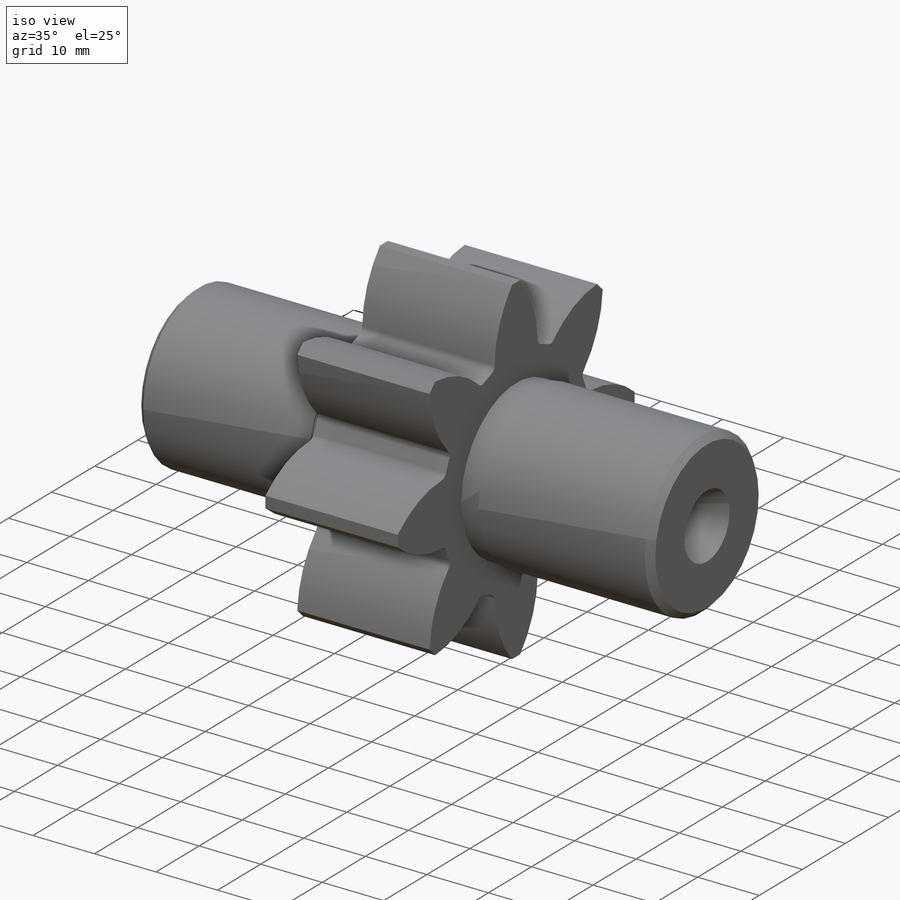
[diagram: iso view]
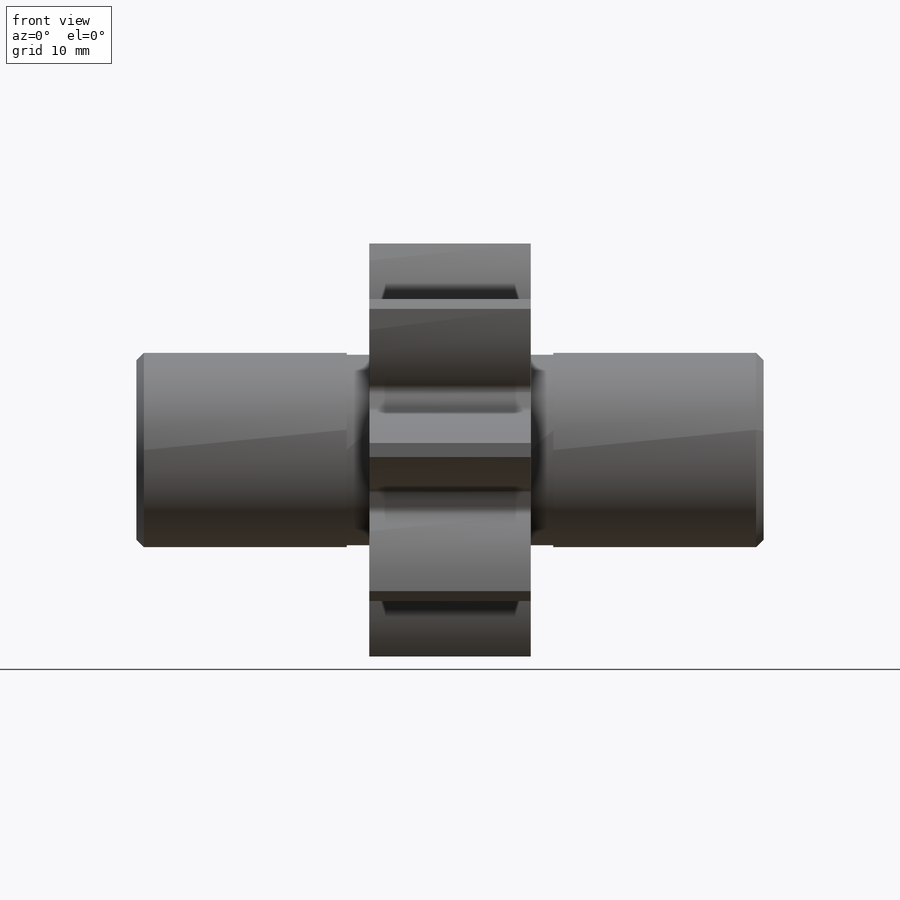
[diagram: front view]
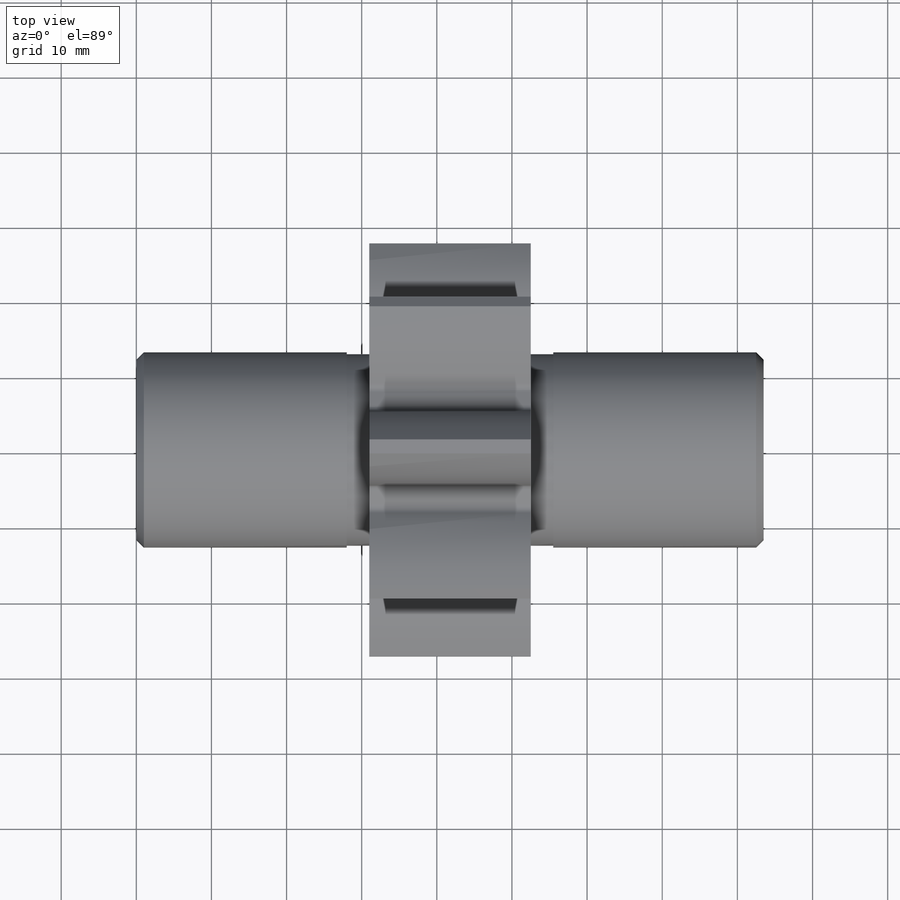
[diagram: top view]
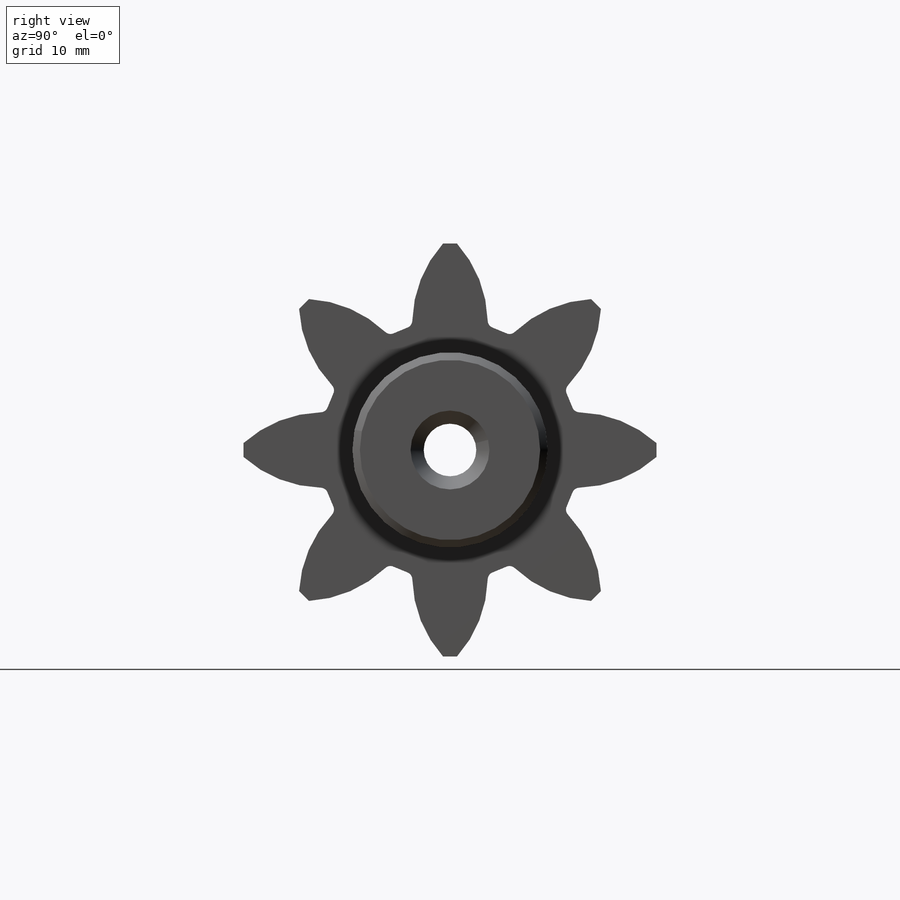
[diagram: right view]
SOLIDWORKS PART (.sldprt)
format: sldprt  version: not decoded by parser v0  size: 314,880 bytes
history: native  units: mm
features: sketch x11, extrude x4, plane x3, hole x3, material x1, cut_revolve x1, fillet x1, pattern_circular x1, chamfer x1 (+8 scaffold rows collapsed)
feature tree (34):
  scaffold x8  (default folders/planes/origin — collapsed)
  material  " 40Х ГОСТ 4543-71"
  plane  "Спереди"
  plane  "Сверху"
  plane  "Справа"
  sketch  "Эскиз1"  dims[D1=26.0mm]
  extrude  "Бобышка-Вытянуть1"  Depth=31mm
  sketch  "Эскиз2"  dims[D1=34.5mm]
  extrude  "Бобышка-Вытянуть2"  Depth=21.5mm
  sketch  "Эскиз3"  dims[D1=26.0mm]
  extrude  "Бобышка-Вытянуть3"  Depth=31mm
  hole  "Отверстие1"  Diameter=40mm Depth=100mm
  sketch  "Эскиз5"
  sketch  "Эскиз4"  dims[Major Ø=40.0mm Depth=100.0mm Drill Angle=118.0deg Minor Ø=20.0mm Внутренний Диаметр=1.0mm Глубина=11.0mm Наружный диаметр=10.5mm Угол заточки сверла=118.0deg]
  hole  "Отверстие2"  Diameter=40mm Depth=100mm
  sketch  "Эскиз7"
  sketch  "Эскиз6"  dims[Major Ø=40.0mm Depth=100.0mm Drill Angle=118.0deg Minor Ø=20.0mm Внутренний Диаметр=1.0mm Глубина=11.0mm Наружный диаметр=10.5mm Угол заточки сверла=118.0deg]
  hole  "Диаметр отверстия Ø7.0 (7)1"  [1 undecoded]
  sketch  "Эскиз9"
  sketch  "Эскиз8"  dims[hole-wizard template sketch: 59 standard entries collapsed; hole parameters kept: c18.Диаметр сквозного отверстия=7.0mm c18.Глубина сквозного отверстия=83.5mm]
  sketch  "Эскиз10"  dims[c1.D1=3.0mm c1.D2=3.0mm c1.D3=12.75mm c1.D4=3.0mm c2.D3=25.5mm]
  cut_revolve  "Вырез-Повернуть1"  Angle=360deg
  sketch  "Эскиз11"  dims[c1.D1=44.0mm c1.D2=55.0mm c1.D4=30.0mm c2.D1=44.0mm c2.D2=55.0mm c2.D4=32.0mm c2.D3=27.5mm c3.D3=11.25deg]
  extrude  "Бобышка-Вытянуть4"  [1 undecoded]
  fillet  "Скругление1"  Radius=1mm
  pattern_circular  "Круговой массив1"  Count=8 Angle=360deg
  chamfer  "Фаска1"  Distance=1mm Angle=45deg
decode coverage: 17 of 22 modeling features carry decoded parameters
note: ~ marks probable driven/reference dimensions
note: 2 parameter values undecoded
note: suppression state not decoded; provenance and decode notes live in map.json
